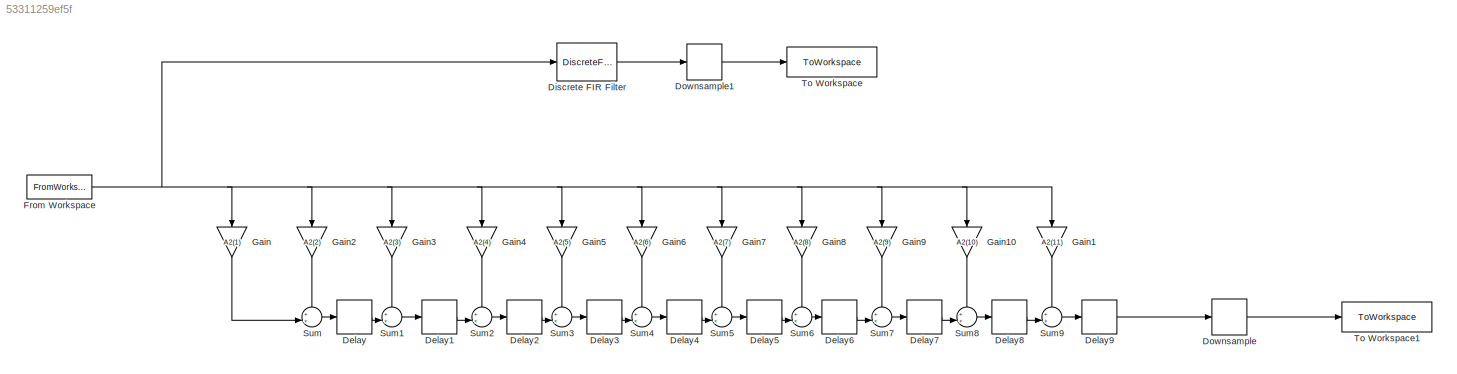
MODEL slx_53311259ef5f
KIND model
CONFIG AbsTol = auto
CONFIG EnableMultiTasking = off
CONFIG FixedStep = 2*NN/Fs
CONFIG MaxStep = auto
CONFIG MinStep = auto
CONFIG RelTol = 1e-3
CONFIG SampleTimeConstraint = Unconstrained
CONFIG SolverName = FixedStepAuto
CONFIG StartTime = 0.0
CONFIG StopTime = 1
BLOCK [Delay] Delay
  DelayLength = 1
  InitialCondition = 0
  InputPortMap = u0
BLOCK [Delay] Delay1
  DelayLength = 1
  InitialCondition = 0
  InputPortMap = u0
BLOCK [Delay] Delay2
  DelayLength = 1
  InitialCondition = 0
  InputPortMap = u0
BLOCK [Delay] Delay3
  DelayLength = 1
  InitialCondition = 0
  InputPortMap = u0
BLOCK [Delay] Delay4
  DelayLength = 1
  InitialCondition = 0
  InputPortMap = u0
BLOCK [Delay] Delay5
  DelayLength = 1
  InitialCondition = 0
  InputPortMap = u0
BLOCK [Delay] Delay6
  DelayLength = 1
  InitialCondition = 0
  InputPortMap = u0
BLOCK [Delay] Delay7
  DelayLength = 1
  InitialCondition = 0
  InputPortMap = u0
BLOCK [Delay] Delay8
  DelayLength = 1
  InitialCondition = 0
  InputPortMap = u0
BLOCK [Delay] Delay9
  DelayLength = 1
  InitialCondition = 0
  InputPortMap = u0
BLOCK [DiscreteFir] Discrete FIR Filter
  Coefficients = AA2
  InputPortMap = u0
  OutputPortMap = o0
BLOCK [DownSample] Downsample
  AllowArbitraryFixedInput = on
  InputProcessing = Elements as channels (sample based)
BLOCK [DownSample] Downsample1
  AllowArbitraryFixedInput = on
  InputProcessing = Elements as channels (sample based)
BLOCK [FromWorkspace] From Workspace
  VariableName = HNDF_out_signal
BLOCK [Gain] Gain
  Gain = A2(1)
  NameLocation = left
BLOCK [Gain] Gain1
  Gain = A2(11)
  NameLocation = left
BLOCK [Gain] Gain10
  Gain = A2(10)
  NameLocation = left
BLOCK [Gain] Gain2
  Gain = A2(2)
  NameLocation = left
BLOCK [Gain] Gain3
  Gain = A2(3)
  NameLocation = left
BLOCK [Gain] Gain4
  Gain = A2(4)
  NameLocation = left
BLOCK [Gain] Gain5
  Gain = A2(5)
  NameLocation = left
BLOCK [Gain] Gain6
  Gain = A2(6)
  NameLocation = left
BLOCK [Gain] Gain7
  Gain = A2(7)
  NameLocation = left
BLOCK [Gain] Gain8
  Gain = A2(8)
  NameLocation = left
BLOCK [Gain] Gain9
  Gain = A2(9)
  NameLocation = left
BLOCK [Sum] Sum
  Inputs = ++|
BLOCK [Sum] Sum1
  Inputs = ++|
BLOCK [Sum] Sum2
  Inputs = ++|
BLOCK [Sum] Sum3
  Inputs = ++|
BLOCK [Sum] Sum4
  Inputs = ++|
BLOCK [Sum] Sum5
  Inputs = ++|
BLOCK [Sum] Sum6
  Inputs = ++|
BLOCK [Sum] Sum7
  Inputs = ++|
BLOCK [Sum] Sum8
  Inputs = ++|
BLOCK [Sum] Sum9
  Inputs = ++|
BLOCK [ToWorkspace] To Workspace
  FixptAsFi = on
  MaxDataPoints = inf
  SampleTime = 4*NN/Fs
  SaveFormat = Timeseries
  VariableName = component
BLOCK [ToWorkspace] To Workspace1
  FixptAsFi = on
  MaxDataPoints = inf
  SampleTime = 4*NN/Fs
  SaveFormat = Timeseries
  VariableName = discrete
LINE Delay1:1 -> Sum2:2
LINE Delay2:1 -> Sum3:2
LINE Delay3:1 -> Sum4:2
LINE Delay4:1 -> Sum5:2
LINE Delay5:1 -> Sum6:2
LINE Delay6:1 -> Sum7:2
LINE Delay7:1 -> Sum8:2
LINE Delay8:1 -> Sum9:2
LINE Delay9:1 -> Downsample:1
LINE Delay:1 -> Sum1:2
LINE Discrete FIR Filter:1 -> Downsample1:1
LINE Downsample1:1 -> To Workspace:1
LINE Downsample:1 -> To Workspace1:1
NET From Workspace:1 -> Discrete FIR Filter:1, Gain10:1, Gain1:1, Gain2:1, Gain3:1, Gain4:1, Gain5:1, Gain6:1, Gain7:1, Gain8:1, Gain9:1, Gain:1
LINE Gain10:1 -> Sum8:1
LINE Gain1:1 -> Sum9:1
LINE Gain2:1 -> Sum:1
LINE Gain3:1 -> Sum1:1
LINE Gain4:1 -> Sum2:1
LINE Gain5:1 -> Sum3:1
LINE Gain6:1 -> Sum4:1
LINE Gain7:1 -> Sum5:1
LINE Gain8:1 -> Sum6:1
LINE Gain9:1 -> Sum7:1
LINE Gain:1 -> Sum:2
LINE Sum1:1 -> Delay1:1
LINE Sum2:1 -> Delay2:1
LINE Sum3:1 -> Delay3:1
LINE Sum4:1 -> Delay4:1
LINE Sum5:1 -> Delay5:1
LINE Sum6:1 -> Delay6:1
LINE Sum7:1 -> Delay7:1
LINE Sum8:1 -> Delay8:1
LINE Sum9:1 -> Delay9:1
LINE Sum:1 -> Delay:1
note: NET lines group one-source signal fan-out (src -> all destinations, sorted); 1:1 wires keep LINE
